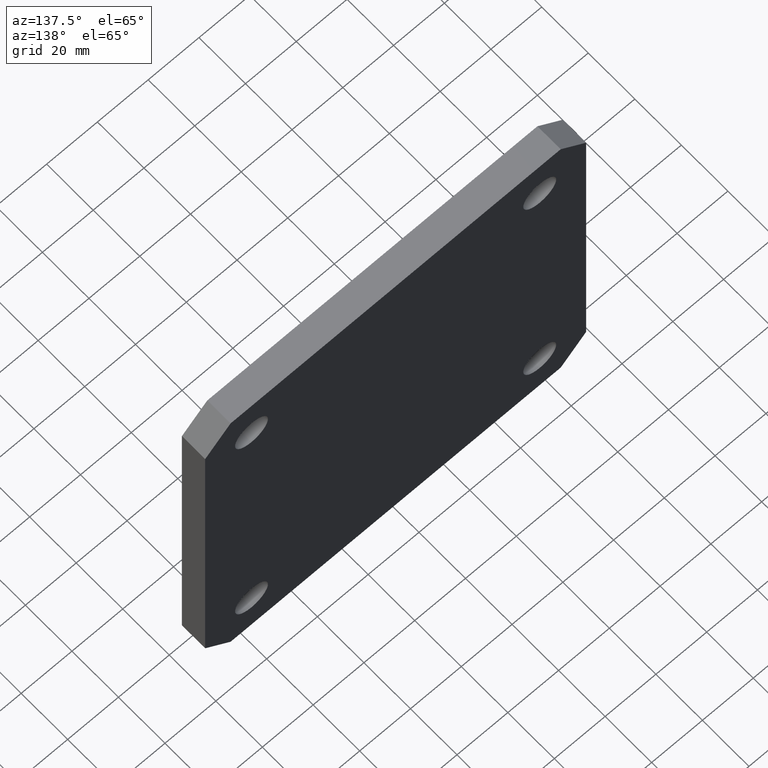
[diagram: clean part render]
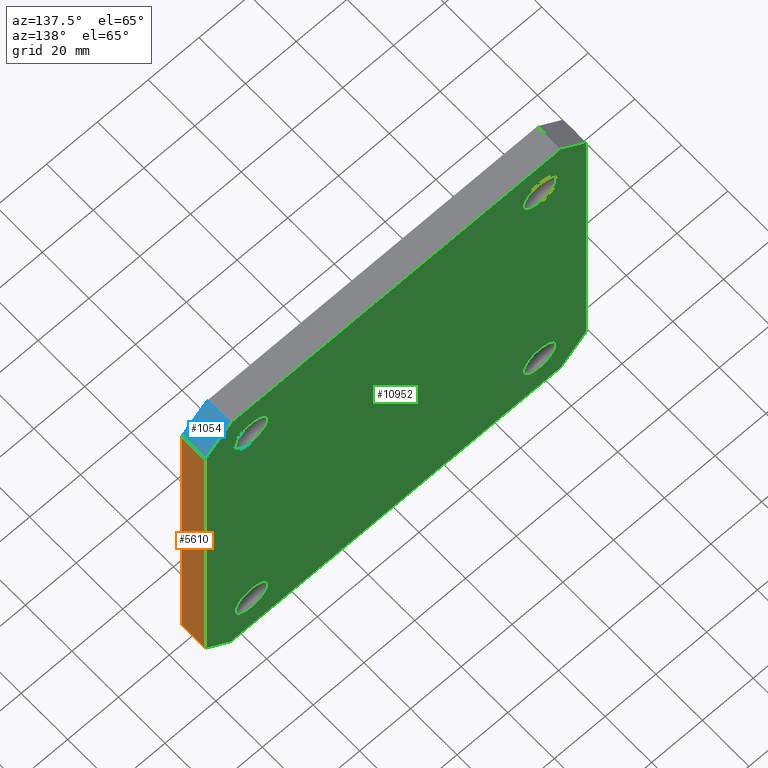
[diagram: same view with three faces highlighted in distinct colors, each labeled with its STEP entity id]
A machine part, auxiliary view with three faces highlighted in distinct colors.
Their STEP definitions:

[orange] entity #5610 — the highlighted planar face has unit normal (-1, 0, 0).
#94 = CARTESIAN_POINT ( 'NONE',  ( 75.00000000000001400, 0.0000000000000000000, 65.00000000000002800 ) ) ;
#541 = CARTESIAN_POINT ( 'NONE',  ( 74.99999999999998600, 10.00000000000000000, -74.99999999999998600 ) ) ;
#693 = EDGE_LOOP ( 'NONE', ( #2037, #2648, #4529, #9506 ) ) ;
#873 = LINE ( 'NONE', #944, #4525 ) ;
#944 = CARTESIAN_POINT ( 'NONE',  ( 74.99999999999998600, 10.00000000000000000, -64.99999999999997200 ) ) ;
#1024 = VERTEX_POINT ( 'NONE', #9074 ) ;
#1424 = VERTEX_POINT ( 'NONE', #2185 ) ;
#1652 = DIRECTION ( 'NONE',  ( 1.850371707708594300E-016, 0.0000000000000000000, 1.000000000000000000 ) ) ;
#1755 = FACE_OUTER_BOUND ( 'NONE', #693, .T. ) ;
#2037 = ORIENTED_EDGE ( 'NONE', *, *, #4931, .T. ) ;
#2185 = CARTESIAN_POINT ( 'NONE',  ( 74.99999999999998600, 0.0000000000000000000, -64.99999999999997200 ) ) ;
#2277 = DIRECTION ( 'NONE',  ( -1.850371707708594300E-016, -0.0000000000000000000, -1.000000000000000000 ) ) ;
#2648 = ORIENTED_EDGE ( 'NONE', *, *, #6557, .T. ) ;
#4254 = DIRECTION ( 'NONE',  ( 0.0000000000000000000, -1.000000000000000000, 0.0000000000000000000 ) ) ;
#4525 = VECTOR ( 'NONE', #9928, 1000.000000000000000 ) ;
#4529 = ORIENTED_EDGE ( 'NONE', *, *, #10209, .F. ) ;
#4931 = EDGE_CURVE ( 'NONE', #7635, #1424, #7749, .T. ) ;
#5365 = VECTOR ( 'NONE', #2277, 1000.000000000000000 ) ;
#5610 = ADVANCED_FACE ( 'NONE', ( #1755 ), #9606, .F. ) ;
#5959 = VECTOR ( 'NONE', #10570, 1000.000000000000000 ) ;
#6557 = EDGE_CURVE ( 'NONE', #1424, #1024, #873, .T. ) ;
#7635 = VERTEX_POINT ( 'NONE', #94 ) ;
#7749 = LINE ( 'NONE', #9825, #5959 ) ;
#8538 = AXIS2_PLACEMENT_3D ( 'NONE', #11320, #10546, #1652 ) ;
#8847 = LINE ( 'NONE', #541, #5365 ) ;
#8913 = CARTESIAN_POINT ( 'NONE',  ( 75.00000000000001400, 10.00000000000000000, 65.00000000000002800 ) ) ;
#9074 = CARTESIAN_POINT ( 'NONE',  ( 74.99999999999998600, 10.00000000000000000, -64.99999999999995700 ) ) ;
#9506 = ORIENTED_EDGE ( 'NONE', *, *, #9529, .T. ) ;
#9529 = EDGE_CURVE ( 'NONE', #10813, #7635, #10223, .T. ) ;
#9606 = PLANE ( 'NONE',  #8538 ) ;
#9660 = CARTESIAN_POINT ( 'NONE',  ( 75.00000000000001400, 10.00000000000000000, 65.00000000000005700 ) ) ;
#9825 = CARTESIAN_POINT ( 'NONE',  ( 74.99999999999998600, 0.0000000000000000000, -74.99999999999998600 ) ) ;
#9928 = DIRECTION ( 'NONE',  ( 0.0000000000000000000, 1.000000000000000000, 0.0000000000000000000 ) ) ;
#10086 = VECTOR ( 'NONE', #4254, 1000.000000000000000 ) ;
#10209 = EDGE_CURVE ( 'NONE', #10813, #1024, #8847, .T. ) ;
#10223 = LINE ( 'NONE', #9660, #10086 ) ;
#10546 = DIRECTION ( 'NONE',  ( -1.000000000000000000, 0.0000000000000000000, 1.850371707708594300E-016 ) ) ;
#10570 = DIRECTION ( 'NONE',  ( -1.850371707708594300E-016, -0.0000000000000000000, -1.000000000000000000 ) ) ;
#10813 = VERTEX_POINT ( 'NONE', #8913 ) ;
#11320 = CARTESIAN_POINT ( 'NONE',  ( 74.99999999999998600, 10.00000000000000000, -74.99999999999998600 ) ) ;

[blue] entity #1054 — the highlighted planar face has unit normal (-0.7071, -0, -0.7071).
#9 = VECTOR ( 'NONE', #1758, 1000.000000000000000 ) ;
#94 = CARTESIAN_POINT ( 'NONE',  ( 75.00000000000001400, 0.0000000000000000000, 65.00000000000002800 ) ) ;
#240 = DIRECTION ( 'NONE',  ( -0.7071067811865451300, -0.0000000000000000000, -0.7071067811865500200 ) ) ;
#1054 = ADVANCED_FACE ( 'NONE', ( #3929 ), #7332, .F. ) ;
#1579 = ORIENTED_EDGE ( 'NONE', *, *, #9529, .F. ) ;
#1758 = DIRECTION ( 'NONE',  ( 0.0000000000000000000, 1.000000000000000000, 0.0000000000000000000 ) ) ;
#1804 = EDGE_CURVE ( 'NONE', #10048, #7567, #7936, .T. ) ;
#1839 = CARTESIAN_POINT ( 'NONE',  ( 69.99999999999977300, 10.00000000000000000, 70.00000000000025600 ) ) ;
#2470 = CARTESIAN_POINT ( 'NONE',  ( 64.99999999999998600, 0.0000000000000000000, 75.00000000000001400 ) ) ;
#3464 = DIRECTION ( 'NONE',  ( 0.7071067811865500200, -0.0000000000000000000, -0.7071067811865451300 ) ) ;
#3788 = DIRECTION ( 'NONE',  ( 0.0000000000000000000, -1.000000000000000000, 0.0000000000000000000 ) ) ;
#3929 = FACE_OUTER_BOUND ( 'NONE', #11001, .T. ) ;
#4004 = ORIENTED_EDGE ( 'NONE', *, *, #1804, .F. ) ;
#4134 = AXIS2_PLACEMENT_3D ( 'NONE', #9108, #240, #3788 ) ;
#4254 = DIRECTION ( 'NONE',  ( 0.0000000000000000000, -1.000000000000000000, 0.0000000000000000000 ) ) ;
#4484 = CARTESIAN_POINT ( 'NONE',  ( 75.00000000000001400, 0.0000000000000000000, 65.00000000000005700 ) ) ;
#5648 = LINE ( 'NONE', #1839, #10213 ) ;
#6124 = ORIENTED_EDGE ( 'NONE', *, *, #9613, .F. ) ;
#6137 = CARTESIAN_POINT ( 'NONE',  ( 64.99999999999994300, 10.00000000000000000, 75.00000000000002800 ) ) ;
#7106 = ORIENTED_EDGE ( 'NONE', *, *, #10055, .F. ) ;
#7332 = PLANE ( 'NONE',  #4134 ) ;
#7567 = VERTEX_POINT ( 'NONE', #6137 ) ;
#7635 = VERTEX_POINT ( 'NONE', #94 ) ;
#7936 = LINE ( 'NONE', #11345, #9 ) ;
#8913 = CARTESIAN_POINT ( 'NONE',  ( 75.00000000000001400, 10.00000000000000000, 65.00000000000002800 ) ) ;
#9108 = CARTESIAN_POINT ( 'NONE',  ( 75.00000000000001400, 10.00000000000000000, 65.00000000000005700 ) ) ;
#9529 = EDGE_CURVE ( 'NONE', #10813, #7635, #10223, .T. ) ;
#9613 = EDGE_CURVE ( 'NONE', #7635, #10048, #9666, .T. ) ;
#9660 = CARTESIAN_POINT ( 'NONE',  ( 75.00000000000001400, 10.00000000000000000, 65.00000000000005700 ) ) ;
#9666 = LINE ( 'NONE', #4484, #10789 ) ;
#9898 = DIRECTION ( 'NONE',  ( -0.7071067811865500200, -0.0000000000000000000, 0.7071067811865451300 ) ) ;
#10048 = VERTEX_POINT ( 'NONE', #2470 ) ;
#10055 = EDGE_CURVE ( 'NONE', #7567, #10813, #5648, .T. ) ;
#10086 = VECTOR ( 'NONE', #4254, 1000.000000000000000 ) ;
#10213 = VECTOR ( 'NONE', #3464, 1000.000000000000100 ) ;
#10223 = LINE ( 'NONE', #9660, #10086 ) ;
#10789 = VECTOR ( 'NONE', #9898, 1000.000000000000100 ) ;
#10813 = VERTEX_POINT ( 'NONE', #8913 ) ;
#11001 = EDGE_LOOP ( 'NONE', ( #7106, #4004, #6124, #1579 ) ) ;
#11345 = CARTESIAN_POINT ( 'NONE',  ( 64.99999999999998600, 10.00000000000000000, 75.00000000000001400 ) ) ;

[green] entity #10952 — the highlighted planar face has unit normal (0, 1, 0).
#37 = ORIENTED_EDGE ( 'NONE', *, *, #2326, .F. ) ;
#49 = DIRECTION ( 'NONE',  ( 0.0000000000000000000, 1.000000000000000000, 0.0000000000000000000 ) ) ;
#156 = EDGE_CURVE ( 'NONE', #5108, #8543, #562, .T. ) ;
#292 = EDGE_CURVE ( 'NONE', #4227, #3952, #10861, .T. ) ;
#541 = CARTESIAN_POINT ( 'NONE',  ( 74.99999999999998600, 10.00000000000000000, -74.99999999999998600 ) ) ;
#562 = CIRCLE ( 'NONE', #8203, 6.499999999999999100 ) ;
#691 = CARTESIAN_POINT ( 'NONE',  ( -75.00000000000001400, 10.00000000000000000, -74.99999999999998600 ) ) ;
#898 = DIRECTION ( 'NONE',  ( 0.0000000000000000000, 0.0000000000000000000, 1.000000000000000000 ) ) ;
#962 = EDGE_CURVE ( 'NONE', #8543, #5108, #9063, .T. ) ;
#1024 = VERTEX_POINT ( 'NONE', #9074 ) ;
#1058 = DIRECTION ( 'NONE',  ( 0.0000000000000000000, 1.000000000000000000, 0.0000000000000000000 ) ) ;
#1441 = CARTESIAN_POINT ( 'NONE',  ( 70.00000000000007100, 10.00000000000000000, -69.99999999999988600 ) ) ;
#1445 = ORIENTED_EDGE ( 'NONE', *, *, #5011, .F. ) ;
#1498 = EDGE_CURVE ( 'NONE', #1024, #2930, #8082, .T. ) ;
#1537 = CIRCLE ( 'NONE', #10290, 6.499999999999992000 ) ;
#1603 = DIRECTION ( 'NONE',  ( -1.000000000000000000, -0.0000000000000000000, -0.0000000000000000000 ) ) ;
#1736 = CARTESIAN_POINT ( 'NONE',  ( 56.75000000000000000, 10.00000000000000000, 56.75000000000000000 ) ) ;
#1762 = ORIENTED_EDGE ( 'NONE', *, *, #1498, .T. ) ;
#1780 = EDGE_CURVE ( 'NONE', #6182, #2716, #4757, .T. ) ;
#1787 = CARTESIAN_POINT ( 'NONE',  ( -75.00000000000001400, 10.00000000000000000, -74.99999999999998600 ) ) ;
#1839 = CARTESIAN_POINT ( 'NONE',  ( 69.99999999999977300, 10.00000000000000000, 70.00000000000025600 ) ) ;
#1914 = ORIENTED_EDGE ( 'NONE', *, *, #7758, .T. ) ;
#1946 = DIRECTION ( 'NONE',  ( 0.0000000000000000000, 0.0000000000000000000, 1.000000000000000000 ) ) ;
#2036 = LINE ( 'NONE', #7431, #8432 ) ;
#2088 = CARTESIAN_POINT ( 'NONE',  ( -56.75000000000000000, 10.00000000000000000, 50.25000000000000000 ) ) ;
#2255 = ORIENTED_EDGE ( 'NONE', *, *, #1780, .F. ) ;
#2277 = DIRECTION ( 'NONE',  ( -1.850371707708594300E-016, -0.0000000000000000000, -1.000000000000000000 ) ) ;
#2295 = CARTESIAN_POINT ( 'NONE',  ( 0.0000000000000000000, 10.00000000000000000, 0.0000000000000000000 ) ) ;
#2326 = EDGE_CURVE ( 'NONE', #2415, #3984, #1537, .T. ) ;
#2376 = AXIS2_PLACEMENT_3D ( 'NONE', #2295, #9477, #2414 ) ;
#2414 = DIRECTION ( 'NONE',  ( 0.0000000000000000000, -0.0000000000000000000, 1.000000000000000000 ) ) ;
#2415 = VERTEX_POINT ( 'NONE', #9722 ) ;
#2486 = CARTESIAN_POINT ( 'NONE',  ( 56.75000000000000000, 10.00000000000000000, 63.25000000000000000 ) ) ;
#2492 = ORIENTED_EDGE ( 'NONE', *, *, #10055, .T. ) ;
#2546 = EDGE_LOOP ( 'NONE', ( #4421, #1914, #6730, #2492, #8988, #1762, #3422, #9751 ) ) ;
#2624 = CARTESIAN_POINT ( 'NONE',  ( -75.00000000000001400, 10.00000000000000000, -64.99999999999998600 ) ) ;
#2666 = ORIENTED_EDGE ( 'NONE', *, *, #156, .F. ) ;
#2716 = VERTEX_POINT ( 'NONE', #8285 ) ;
#2872 = DIRECTION ( 'NONE',  ( 0.0000000000000000000, 0.0000000000000000000, 1.000000000000000000 ) ) ;
#2930 = VERTEX_POINT ( 'NONE', #6565 ) ;
#3155 = VECTOR ( 'NONE', #6704, 1000.000000000000100 ) ;
#3223 = EDGE_CURVE ( 'NONE', #3984, #2415, #7505, .T. ) ;
#3249 = AXIS2_PLACEMENT_3D ( 'NONE', #7205, #3652, #2872 ) ;
#3253 = DIRECTION ( 'NONE',  ( 0.0000000000000000000, 1.000000000000000000, 0.0000000000000000000 ) ) ;
#3272 = FACE_BOUND ( 'NONE', #9439, .T. ) ;
#3281 = DIRECTION ( 'NONE',  ( -0.7071067811865465700, 0.0000000000000000000, -0.7071067811865485700 ) ) ;
#3404 = CARTESIAN_POINT ( 'NONE',  ( -74.99999999999998600, 10.00000000000000000, 65.00000000000000000 ) ) ;
#3405 = VECTOR ( 'NONE', #1603, 1000.000000000000000 ) ;
#3422 = ORIENTED_EDGE ( 'NONE', *, *, #10035, .T. ) ;
#3464 = DIRECTION ( 'NONE',  ( 0.7071067811865500200, -0.0000000000000000000, -0.7071067811865451300 ) ) ;
#3544 = FACE_BOUND ( 'NONE', #7700, .T. ) ;
#3652 = DIRECTION ( 'NONE',  ( 0.0000000000000000000, 1.000000000000000000, 0.0000000000000000000 ) ) ;
#3734 = EDGE_CURVE ( 'NONE', #9305, #7567, #4459, .T. ) ;
#3952 = VERTEX_POINT ( 'NONE', #2088 ) ;
#3968 = CARTESIAN_POINT ( 'NONE',  ( -56.75000000000000000, 10.00000000000000000, 56.75000000000000000 ) ) ;
#3984 = VERTEX_POINT ( 'NONE', #9539 ) ;
#4227 = VERTEX_POINT ( 'NONE', #5033 ) ;
#4421 = ORIENTED_EDGE ( 'NONE', *, *, #9615, .T. ) ;
#4457 = DIRECTION ( 'NONE',  ( 0.0000000000000000000, 0.0000000000000000000, 1.000000000000000000 ) ) ;
#4459 = LINE ( 'NONE', #9144, #6398 ) ;
#4757 = CIRCLE ( 'NONE', #8293, 6.499999999999999100 ) ;
#5011 = EDGE_CURVE ( 'NONE', #2716, #6182, #5815, .T. ) ;
#5033 = CARTESIAN_POINT ( 'NONE',  ( -56.75000000000000000, 10.00000000000000000, 63.25000000000000000 ) ) ;
#5108 = VERTEX_POINT ( 'NONE', #9202 ) ;
#5365 = VECTOR ( 'NONE', #2277, 1000.000000000000000 ) ;
#5371 = CARTESIAN_POINT ( 'NONE',  ( -56.75000000000000000, 10.00000000000000000, -56.75000000000000000 ) ) ;
#5375 = EDGE_LOOP ( 'NONE', ( #8966, #5473 ) ) ;
#5377 = CARTESIAN_POINT ( 'NONE',  ( 56.75000000000000000, 10.00000000000000000, 56.75000000000000000 ) ) ;
#5473 = ORIENTED_EDGE ( 'NONE', *, *, #8814, .F. ) ;
#5507 = CARTESIAN_POINT ( 'NONE',  ( -56.75000000000000000, 10.00000000000000000, 56.75000000000000000 ) ) ;
#5552 = DIRECTION ( 'NONE',  ( 0.0000000000000000000, 1.000000000000000000, 0.0000000000000000000 ) ) ;
#5648 = LINE ( 'NONE', #1839, #10213 ) ;
#5784 = LINE ( 'NONE', #691, #3405 ) ;
#5809 = CIRCLE ( 'NONE', #7653, 6.499999999999999100 ) ;
#5815 = CIRCLE ( 'NONE', #3249, 6.499999999999999100 ) ;
#6137 = CARTESIAN_POINT ( 'NONE',  ( 64.99999999999994300, 10.00000000000000000, 75.00000000000002800 ) ) ;
#6182 = VERTEX_POINT ( 'NONE', #6204 ) ;
#6204 = CARTESIAN_POINT ( 'NONE',  ( -56.75000000000000000, 10.00000000000000000, -63.25000000000000000 ) ) ;
#6341 = CARTESIAN_POINT ( 'NONE',  ( 56.75000000000000000, 10.00000000000000000, -56.75000000000000000 ) ) ;
#6398 = VECTOR ( 'NONE', #8170, 1000.000000000000000 ) ;
#6499 = VERTEX_POINT ( 'NONE', #3404 ) ;
#6565 = CARTESIAN_POINT ( 'NONE',  ( 64.99999999999994300, 10.00000000000000000, -75.00000000000000000 ) ) ;
#6704 = DIRECTION ( 'NONE',  ( -0.7071067811865493500, -0.0000000000000000000, 0.7071067811865455700 ) ) ;
#6730 = ORIENTED_EDGE ( 'NONE', *, *, #3734, .T. ) ;
#6769 = LINE ( 'NONE', #1787, #8423 ) ;
#6928 = EDGE_LOOP ( 'NONE', ( #1445, #2255 ) ) ;
#7205 = CARTESIAN_POINT ( 'NONE',  ( -56.75000000000000000, 10.00000000000000000, -56.75000000000000000 ) ) ;
#7259 = ORIENTED_EDGE ( 'NONE', *, *, #962, .F. ) ;
#7298 = DIRECTION ( 'NONE',  ( 0.0000000000000000000, 0.0000000000000000000, 1.000000000000000000 ) ) ;
#7431 = CARTESIAN_POINT ( 'NONE',  ( -70.00000000000019900, 10.00000000000000000, 69.99999999999981500 ) ) ;
#7505 = CIRCLE ( 'NONE', #11261, 6.499999999999992000 ) ;
#7567 = VERTEX_POINT ( 'NONE', #6137 ) ;
#7621 = PLANE ( 'NONE',  #2376 ) ;
#7653 = AXIS2_PLACEMENT_3D ( 'NONE', #5507, #1058, #7298 ) ;
#7669 = VECTOR ( 'NONE', #3281, 1000.000000000000000 ) ;
#7700 = EDGE_LOOP ( 'NONE', ( #7259, #2666 ) ) ;
#7758 = EDGE_CURVE ( 'NONE', #6499, #9305, #2036, .T. ) ;
#7954 = EDGE_CURVE ( 'NONE', #8361, #10083, #8290, .T. ) ;
#7993 = FACE_OUTER_BOUND ( 'NONE', #2546, .T. ) ;
#8082 = LINE ( 'NONE', #1441, #7669 ) ;
#8087 = DIRECTION ( 'NONE',  ( 0.0000000000000000000, 1.000000000000000000, 0.0000000000000000000 ) ) ;
#8170 = DIRECTION ( 'NONE',  ( 1.000000000000000000, 0.0000000000000000000, 0.0000000000000000000 ) ) ;
#8203 = AXIS2_PLACEMENT_3D ( 'NONE', #5377, #49, #1946 ) ;
#8285 = CARTESIAN_POINT ( 'NONE',  ( -56.75000000000000000, 10.00000000000000000, -50.25000000000000000 ) ) ;
#8290 = LINE ( 'NONE', #8435, #3155 ) ;
#8293 = AXIS2_PLACEMENT_3D ( 'NONE', #5371, #8087, #4457 ) ;
#8361 = VERTEX_POINT ( 'NONE', #8378 ) ;
#8378 = CARTESIAN_POINT ( 'NONE',  ( -64.99999999999995700, 10.00000000000000000, -74.99999999999998600 ) ) ;
#8423 = VECTOR ( 'NONE', #10681, 1000.000000000000000 ) ;
#8432 = VECTOR ( 'NONE', #10878, 1000.000000000000100 ) ;
#8435 = CARTESIAN_POINT ( 'NONE',  ( -69.99999999999980100, 10.00000000000000000, -70.00000000000017100 ) ) ;
#8543 = VERTEX_POINT ( 'NONE', #2486 ) ;
#8549 = DIRECTION ( 'NONE',  ( 0.0000000000000000000, 0.0000000000000000000, 1.000000000000000000 ) ) ;
#8592 = AXIS2_PLACEMENT_3D ( 'NONE', #3968, #10252, #8549 ) ;
#8814 = EDGE_CURVE ( 'NONE', #3952, #4227, #5809, .T. ) ;
#8838 = FACE_BOUND ( 'NONE', #5375, .T. ) ;
#8847 = LINE ( 'NONE', #541, #5365 ) ;
#8913 = CARTESIAN_POINT ( 'NONE',  ( 75.00000000000001400, 10.00000000000000000, 65.00000000000002800 ) ) ;
#8966 = ORIENTED_EDGE ( 'NONE', *, *, #292, .F. ) ;
#8988 = ORIENTED_EDGE ( 'NONE', *, *, #10209, .T. ) ;
#9063 = CIRCLE ( 'NONE', #11181, 6.499999999999999100 ) ;
#9074 = CARTESIAN_POINT ( 'NONE',  ( 74.99999999999998600, 10.00000000000000000, -64.99999999999995700 ) ) ;
#9144 = CARTESIAN_POINT ( 'NONE',  ( -75.00000000000000000, 10.00000000000000000, 75.00000000000001400 ) ) ;
#9202 = CARTESIAN_POINT ( 'NONE',  ( 56.75000000000000000, 10.00000000000000000, 50.25000000000000700 ) ) ;
#9305 = VERTEX_POINT ( 'NONE', #11102 ) ;
#9439 = EDGE_LOOP ( 'NONE', ( #9467, #37 ) ) ;
#9460 = DIRECTION ( 'NONE',  ( 0.0000000000000000000, 0.0000000000000000000, 1.000000000000000000 ) ) ;
#9467 = ORIENTED_EDGE ( 'NONE', *, *, #3223, .F. ) ;
#9477 = DIRECTION ( 'NONE',  ( 0.0000000000000000000, 1.000000000000000000, 0.0000000000000000000 ) ) ;
#9532 = CARTESIAN_POINT ( 'NONE',  ( 56.75000000000000000, 10.00000000000000000, -56.75000000000000000 ) ) ;
#9539 = CARTESIAN_POINT ( 'NONE',  ( 56.75000000000000000, 10.00000000000000000, -50.25000000000000700 ) ) ;
#9615 = EDGE_CURVE ( 'NONE', #10083, #6499, #6769, .T. ) ;
#9722 = CARTESIAN_POINT ( 'NONE',  ( 56.75000000000000000, 10.00000000000000000, -63.25000000000000000 ) ) ;
#9751 = ORIENTED_EDGE ( 'NONE', *, *, #7954, .T. ) ;
#9808 = DIRECTION ( 'NONE',  ( 0.0000000000000000000, 0.0000000000000000000, 1.000000000000000000 ) ) ;
#10035 = EDGE_CURVE ( 'NONE', #2930, #8361, #5784, .T. ) ;
#10055 = EDGE_CURVE ( 'NONE', #7567, #10813, #5648, .T. ) ;
#10083 = VERTEX_POINT ( 'NONE', #2624 ) ;
#10209 = EDGE_CURVE ( 'NONE', #10813, #1024, #8847, .T. ) ;
#10213 = VECTOR ( 'NONE', #3464, 1000.000000000000100 ) ;
#10252 = DIRECTION ( 'NONE',  ( 0.0000000000000000000, 1.000000000000000000, 0.0000000000000000000 ) ) ;
#10290 = AXIS2_PLACEMENT_3D ( 'NONE', #9532, #3253, #9460 ) ;
#10346 = FACE_BOUND ( 'NONE', #6928, .T. ) ;
#10631 = DIRECTION ( 'NONE',  ( 0.0000000000000000000, 1.000000000000000000, 0.0000000000000000000 ) ) ;
#10681 = DIRECTION ( 'NONE',  ( 9.251858538542971600E-017, 0.0000000000000000000, 1.000000000000000000 ) ) ;
#10813 = VERTEX_POINT ( 'NONE', #8913 ) ;
#10861 = CIRCLE ( 'NONE', #8592, 6.499999999999999100 ) ;
#10878 = DIRECTION ( 'NONE',  ( 0.7071067811865455700, -0.0000000000000000000, 0.7071067811865493500 ) ) ;
#10952 = ADVANCED_FACE ( 'NONE', ( #3544, #8838, #3272, #10346, #7993 ), #7621, .T. ) ;
#11102 = CARTESIAN_POINT ( 'NONE',  ( -65.00000000000002800, 10.00000000000000000, 75.00000000000001400 ) ) ;
#11181 = AXIS2_PLACEMENT_3D ( 'NONE', #1736, #10631, #898 ) ;
#11261 = AXIS2_PLACEMENT_3D ( 'NONE', #6341, #5552, #9808 ) ;